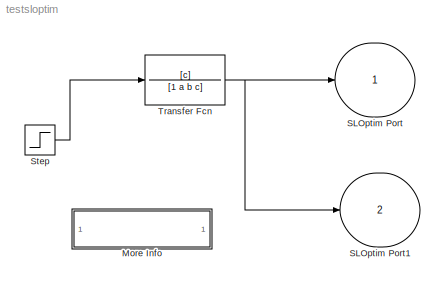
MODEL testsloptim
KIND model
CONFIG AbsTol = auto
CONFIG FixedStep = auto
CONFIG MaxStep = auto
CONFIG MinStep = auto
CONFIG RelTol = 1e-3
CONFIG Solver = ode45
CONFIG SolverMode = Auto
CONFIG StartTime = 0
CONFIG StopTime = 100
BLOCK [SubSystem] More Info
  MaskDisplay = disp('Intialize Parameters')
  MaskIconFrame = on
  MaskIconOpaque = on
  MaskIconRotate = none
  MaskIconUnits = autoscale
  OpenFcn = a = 0.01; b = 1; c = 0.1;
  Ports = []
  TreatAsAtomicUnit = off
BLOCK [Outport] SLOptim Port
  InitialOutput = 0
  MaskDisplay = plot([0:10],[-.5 1.5 .6 1.3 .8 1.1 .95 1.02 .99 1 1])\ndisp(['\\n SLOptim_Port',get_param(gcb,'Port')]);
  MaskEnableString = on
  MaskIconFrame = on
  MaskIconOpaque = on
  MaskIconRotate = none
  MaskIconUnits = autoscale
  MaskPromptString = GUILocation
  MaskSelfModifiable = on
  MaskStyleString = edit
  MaskToolTipString = on
  MaskTunableValueString = on
  MaskType = SLOptim Port
  MaskValueString = [0.15 0.25 0.7 0.5]
  MaskVariables = GUIlocation=@1;
  MaskVisibilityString = on
  ModelCloseFcn = sloptimModelClose
  OpenFcn = slparoptim;\n
  PreSaveFcn = sloptimguilocation
BLOCK [Outport] SLOptim Port1
  InitialOutput = 0
  MaskDisplay = plot([0:10],[-.5 1.5 .6 1.3 .8 1.1 .95 1.02 .99 1 1])\ndisp(['\\n SLOptim_Port',get_param(gcb,'Port')]);
  MaskEnableString = on
  MaskIconFrame = on
  MaskIconOpaque = on
  MaskIconRotate = none
  MaskIconUnits = autoscale
  MaskPromptString = GUILocation
  MaskSelfModifiable = on
  MaskStyleString = edit
  MaskToolTipString = on
  MaskTunableValueString = on
  MaskType = SLOptim Port
  MaskValueString = [0.15 0.25 0.7 0.5]
  MaskVariables = GUIlocation=@1;
  MaskVisibilityString = on
  ModelCloseFcn = sloptimModelClose
  OpenFcn = slparoptim;\n
  Port = 2
  PreSaveFcn = sloptimguilocation
BLOCK [Step] Step
  SampleTime = 0
  Time = 0
BLOCK [TransferFcn] Transfer Fcn
  Denominator = [1 a b c]
  Numerator = [c]
ANNOTATION More Info: Merge Block Demonstration
ANNOTATION More Info: This demonstration shows what happens when the output of two enabled \nsubsystems are merged together. The output of the merge block is the last\n output written to the input ports of the block.\n\nWhile the simulation is running, the subsystem which is green is the one \nwhose signal is displayed on the scope. The coloring of the blocks is \ncontrolled by an S-Function which exists in the enabled...<+120ch>
LINE Step:1 -> Transfer Fcn:1
NET Transfer Fcn:1 -> SLOptim Port1:1, SLOptim Port:1
note: NET lines group one-source signal fan-out (src -> all destinations, sorted); 1:1 wires keep LINE
